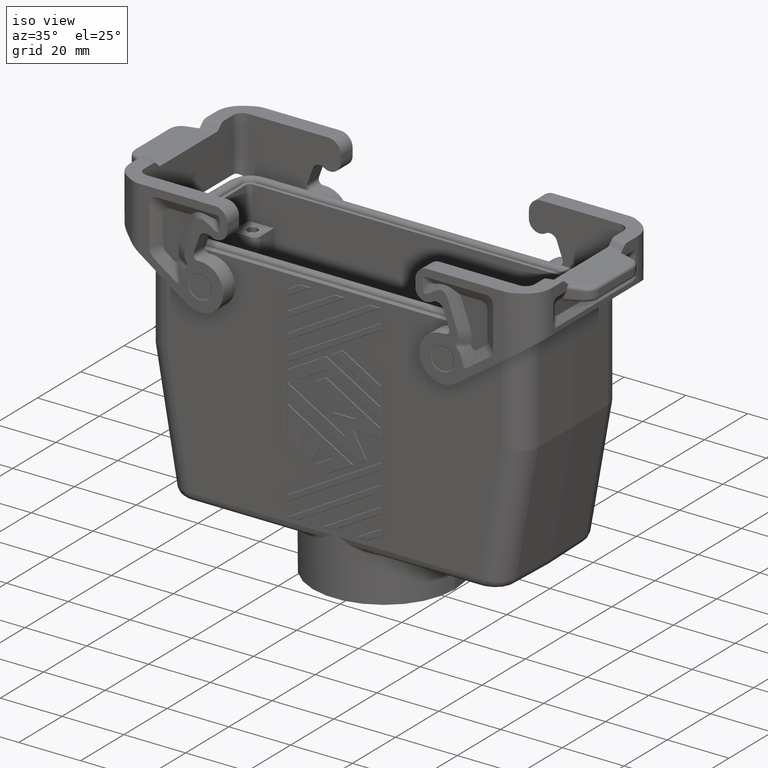
[diagram: clean part render]
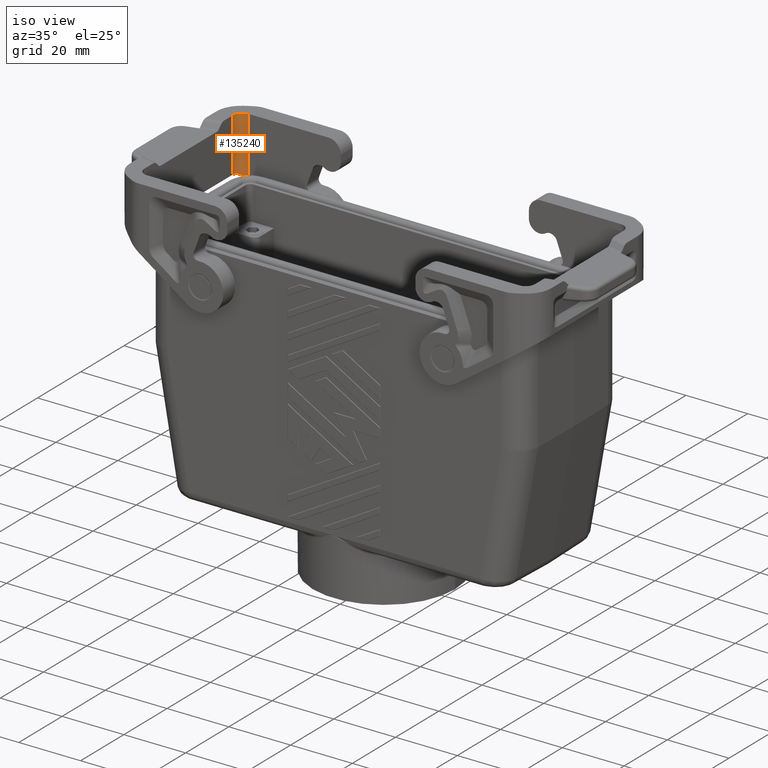
[diagram: same view with one face highlighted and labeled with its STEP entity id]
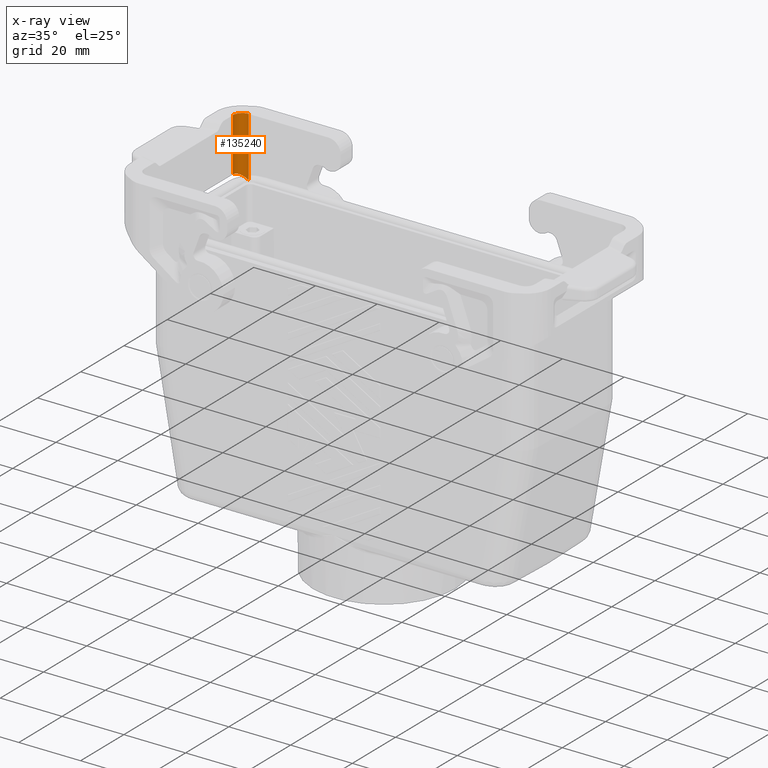
[diagram: x-ray of the same camera — body ghosted, the highlighted face saturated]
A machine part, iso view. The second image highlights one B-rep face of the part: STEP entity #135240.
The next image is the same camera in x-ray: the body ghosted, the highlighted face saturated — about 0% of this face is hidden behind the body in this view.
In plain terms, the highlighted cylindrical surface (edge-blend (fillet) strip) has radius 3 mm, axis along (-0, 0, -1).
Its self-contained STEP definition (entity closure, byte-faithful):
#126780=CARTESIAN_POINT('',(57.5034979824452,26.1518441133053,
-23.5000000000006));
#126790=VERTEX_POINT('',#126780);
#126820=CARTESIAN_POINT('',(57.503497982445,-102.531833182515,
-23.5000000000004));
#126830=DIRECTION('',(1.69706889109585E-15,1.,-1.3790124416382E-15));
#126840=VECTOR('',#126830,1.);
#126850=LINE('',#126820,#126840);
#126860=CARTESIAN_POINT('',(57.5034979824452,6.7003930000057,
-23.5000000000006));
#126870=VERTEX_POINT('',#126860);
#126880=EDGE_CURVE('',#126870,#126790,#126850,.T.);
#128080=CARTESIAN_POINT('',(57.5034979824452,6.7003930000057,
-20.5000000000006));
#128090=DIRECTION('',(1.69706889109585E-15,1.,-1.3790124416382E-15));
#128100=DIRECTION('',(-1.,1.69706889109585E-15,2.77555756156286E-16));
#128110=AXIS2_PLACEMENT_3D('',#128080,#128090,#128100);
#128120=CIRCLE('',#128110,3.);
#128130=CARTESIAN_POINT('',(60.5034979824452,6.70039300000569,
-20.5000000000006));
#128140=VERTEX_POINT('',#128130);
#128150=EDGE_CURVE('',#128140,#126870,#128120,.T.);
#129190=CARTESIAN_POINT('',(60.5034979824452,24.0512214986768,
-20.5000000000006));
#129200=VERTEX_POINT('',#129190);
#129230=CARTESIAN_POINT('',(57.5034979824452,26.1518441133054,
-20.5000000000006));
#129240=DIRECTION('',(-0.573576436350953,-0.819152044289057,
1.28882030217279E-15));
#129250=DIRECTION('',(-0.819152044289057,0.573576436350953,
-5.63608676898848E-16));
#129260=AXIS2_PLACEMENT_3D('',#129230,#129240,#129250);
#129270=ELLIPSE('',#129260,3.66232376628407,3.);
#129280=EDGE_CURVE('',#126790,#129200,#129270,.T.);
#134390=CARTESIAN_POINT('',(60.503497982445,-102.531833182515,
-20.5000000000004));
#134400=DIRECTION('',(1.69706889109585E-15,1.,-1.3790124416382E-15));
#134410=VECTOR('',#134400,1.);
#134420=LINE('',#134390,#134410);
#134430=EDGE_CURVE('',#128140,#129200,#134420,.T.);
#135130=CARTESIAN_POINT('',(57.503497982445,-102.531833182515,
-20.5000000000004));
#135140=DIRECTION('',(1.69706889109585E-15,1.,-1.3790124416382E-15));
#135150=DIRECTION('',(-1.,1.69706889109585E-15,2.77555756156286E-16));
#135160=AXIS2_PLACEMENT_3D('',#135130,#135140,#135150);
#135170=CYLINDRICAL_SURFACE('',#135160,3.);
#135180=ORIENTED_EDGE('',*,*,#128150,.F.);
#135190=ORIENTED_EDGE('',*,*,#126880,.F.);
#135200=ORIENTED_EDGE('',*,*,#129280,.F.);
#135210=ORIENTED_EDGE('',*,*,#134430,.T.);
#135220=EDGE_LOOP('',(#135210,#135200,#135190,#135180));
#135230=FACE_OUTER_BOUND('',#135220,.T.);
#135240=ADVANCED_FACE('',(#135230),#135170,.F.);